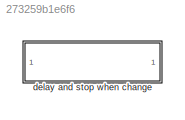
MODEL slx_273259b1e6f6
KIND library
CONFIG AbsTol = auto
CONFIG EnableMultiTasking = off
CONFIG FixedStep = auto
CONFIG MaxStep = auto
CONFIG MinStep = auto
CONFIG RelTol = 1e-3
CONFIG SampleTimeConstraint = Unconstrained
CONFIG SolverName = VariableStepAuto
CONFIG StartTime = 0.0
CONFIG StopTime = 10.0
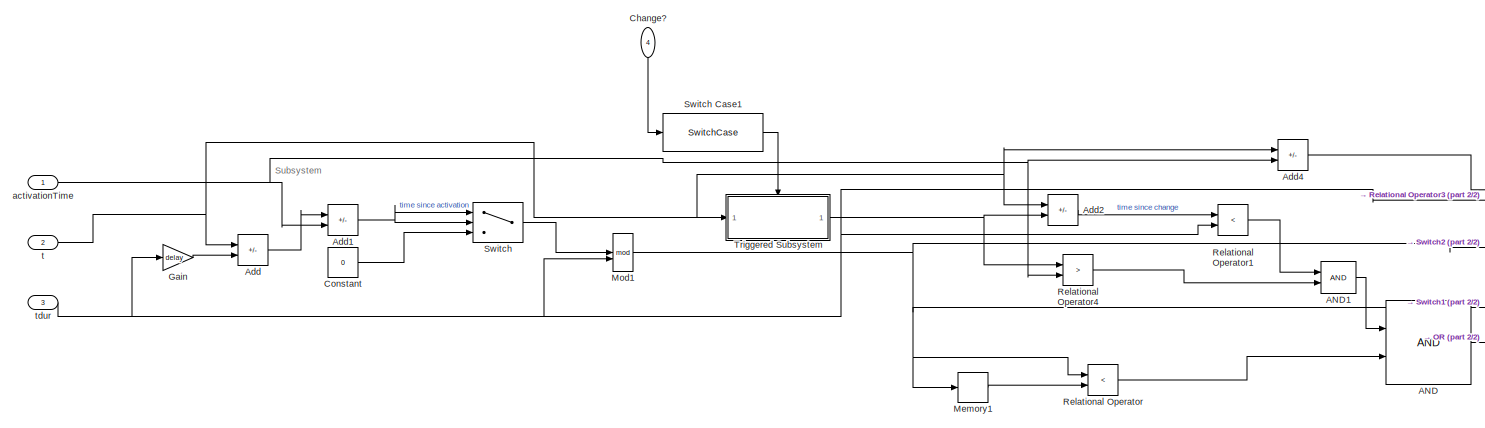
[diagram: delay and stop when change - part 1/2, most of the canvas]
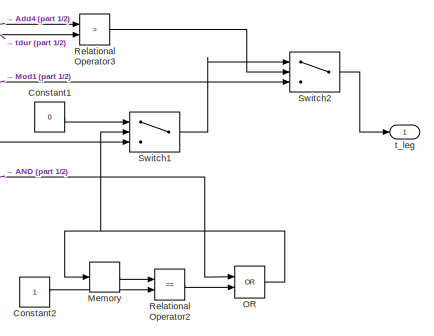
[diagram: delay and stop when change - part 2/2, bottom right region]
BLOCK [SubSystem] delay and stop when change
BLOCK [Logic] delay and stop when change/AND
  AllPortsSameDT = off
  IconShape = distinctive
  OutDataTypeStr = boolean
BLOCK [Logic] delay and stop when change/AND1
  AllPortsSameDT = off
  IconShape = distinctive
  OutDataTypeStr = boolean
BLOCK [Sum] delay and stop when change/Add
  IconShape = rectangular
  Inputs = +-
BLOCK [Sum] delay and stop when change/Add1
  IconShape = rectangular
  Inputs = +-
BLOCK [Sum] delay and stop when change/Add2
  IconShape = rectangular
  Inputs = +-
BLOCK [Sum] delay and stop when change/Add4
  IconShape = rectangular
  Inputs = +-
BLOCK [Inport] delay and stop when change/Change?
  NameLocation = left
  Port = 4
BLOCK [Constant] delay and stop when change/Constant
  Value = 0
BLOCK [Constant] delay and stop when change/Constant1
  Value = 0
BLOCK [Constant] delay and stop when change/Constant2
BLOCK [Gain] delay and stop when change/Gain
  Gain = delay
BLOCK [Memory] delay and stop when change/Memory
BLOCK [Memory] delay and stop when change/Memory1
BLOCK [Math] delay and stop when change/Mod1
  Operator = mod
BLOCK [Logic] delay and stop when change/OR
  AllPortsSameDT = off
  IconShape = distinctive
  Operator = OR
  OutDataTypeStr = boolean
BLOCK [RelationalOperator] delay and stop when change/Relational Operator
  InputSameDT = off
  Operator = <
  OutDataTypeStr = boolean
  RndMeth = Simplest
BLOCK [RelationalOperator] delay and stop when change/Relational Operator1
  InputSameDT = off
  Operator = <
  OutDataTypeStr = boolean
  RndMeth = Simplest
BLOCK [RelationalOperator] delay and stop when change/Relational Operator2
  InputSameDT = off
  Operator = ==
  OutDataTypeStr = boolean
  RndMeth = Simplest
BLOCK [RelationalOperator] delay and stop when change/Relational Operator3
  InputSameDT = off
  Operator = >
  OutDataTypeStr = boolean
  RndMeth = Simplest
BLOCK [RelationalOperator] delay and stop when change/Relational Operator4
  InputSameDT = off
  Operator = >
  OutDataTypeStr = boolean
  RndMeth = Simplest
BLOCK [Switch] delay and stop when change/Switch
  Criteria = u2 > Threshold
  InputSameDT = off
  SaturateOnIntegerOverflow = off
BLOCK [SwitchCase] delay and stop when change/Switch Case1
  ShowDefaultCase = off
BLOCK [Switch] delay and stop when change/Switch1
  Criteria = u2 > Threshold
  InputSameDT = off
  SaturateOnIntegerOverflow = off
BLOCK [Switch] delay and stop when change/Switch2
  Criteria = u2 > Threshold
  InputSameDT = off
  SaturateOnIntegerOverflow = off
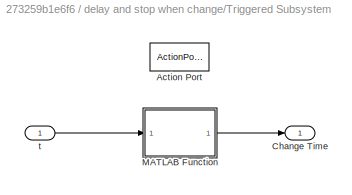
BLOCK [SubSystem] delay and stop when change/Triggered Subsystem
  TreatAsAtomicUnit = on
BLOCK [ActionPort] delay and stop when change/Triggered Subsystem/Action Port
  InitializeStates = reset
BLOCK [Outport] delay and stop when change/Triggered Subsystem/Change Time
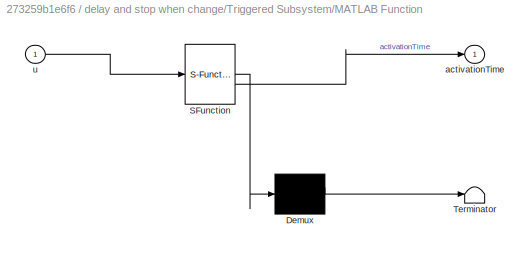
BLOCK [SubSystem] delay and stop when change/Triggered Subsystem/MATLAB Function
  ErrorFcn = Stateflow.Translate.translate
  PermitHierarchicalResolution = ExplicitOnly
  SFBlockType = MATLAB Function
  TreatAsAtomicUnit = on
BLOCK [Demux] delay and stop when change/Triggered Subsystem/MATLAB Function/ Demux 
  Outputs = 1
BLOCK [S-Function] delay and stop when change/Triggered Subsystem/MATLAB Function/ SFunction 
  EnableBusSupport = off
  FunctionName = sf_sfun
  PortCounts = [1 2]
  SFcnIsStateOwnerBlock = off
  SFunctionDeploymentMode = off
  Tag = Stateflow S-Function 1
BLOCK [Terminator] delay and stop when change/Triggered Subsystem/MATLAB Function/ Terminator 
BLOCK [Outport] delay and stop when change/Triggered Subsystem/MATLAB Function/activationTime
BLOCK [Inport] delay and stop when change/Triggered Subsystem/MATLAB Function/u
BLOCK [Inport] delay and stop when change/Triggered Subsystem/t
BLOCK [Inport] delay and stop when change/activationTime
BLOCK [Inport] delay and stop when change/t
  Port = 2
BLOCK [Outport] delay and stop when change/t_leg
BLOCK [Inport] delay and stop when change/tdur
  Port = 3
ANNOTATION delay and stop when change: Subsystem
LINE delay and stop when change/AND1:1 -> delay and stop when change/AND:1
LINE delay and stop when change/AND:1 -> delay and stop when change/OR:1
NET delay and stop when change/Add1:1 -> delay and stop when change/Switch:1, delay and stop when change/Switch:2
LINE delay and stop when change/Add2:1 -> delay and stop when change/Relational Operator1:1
LINE delay and stop when change/Add4:1 -> delay and stop when change/Relational Operator3:1
LINE delay and stop when change/Add:1 -> delay and stop when change/Add1:1
LINE delay and stop when change/Change?:1 -> delay and stop when change/Switch Case1:1
LINE delay and stop when change/Constant1:1 -> delay and stop when change/Switch1:1
LINE delay and stop when change/Constant2:1 -> delay and stop when change/Relational Operator2:2
LINE delay and stop when change/Constant:1 -> delay and stop when change/Switch:3
LINE delay and stop when change/Gain:1 -> delay and stop when change/Add:2
LINE delay and stop when change/Memory1:1 -> delay and stop when change/Relational Operator:2
LINE delay and stop when change/Memory:1 -> delay and stop when change/Relational Operator2:1
NET delay and stop when change/Mod1:1 -> delay and stop when change/Memory1:1, delay and stop when change/Relational Operator:1, delay and stop when change/Switch1:3, delay and stop when change/Switch2:3
NET delay and stop when change/OR:1 -> delay and stop when change/Memory:1, delay and stop when change/Switch1:2
LINE delay and stop when change/Relational Operator1:1 -> delay and stop when change/AND1:1
LINE delay and stop when change/Relational Operator2:1 -> delay and stop when change/OR:2
LINE delay and stop when change/Relational Operator3:1 -> delay and stop when change/Switch2:2
LINE delay and stop when change/Relational Operator4:1 -> delay and stop when change/AND1:2
LINE delay and stop when change/Relational Operator:1 -> delay and stop when change/AND:2
LINE delay and stop when change/Switch Case1:1 -> delay and stop when change/Triggered Subsystem:ifaction
LINE delay and stop when change/Switch1:1 -> delay and stop when change/Switch2:1
LINE delay and stop when change/Switch2:1 -> delay and stop when change/t_leg:1
LINE delay and stop when change/Switch:1 -> delay and stop when change/Mod1:1
LINE delay and stop when change/Triggered Subsystem/MATLAB Function:1 -> delay and stop when change/Triggered Subsystem/Change Time:1
LINE delay and stop when change/Triggered Subsystem/t:1 -> delay and stop when change/Triggered Subsystem/MATLAB Function:1
NET delay and stop when change/Triggered Subsystem:1 -> delay and stop when change/Add2:2, delay and stop when change/Relational Operator4:1
NET delay and stop when change/activationTime:1 -> delay and stop when change/Add1:2, delay and stop when change/Add4:2, delay and stop when change/Relational Operator4:2
NET delay and stop when change/t:1 -> delay and stop when change/Add2:1, delay and stop when change/Add4:1, delay and stop when change/Add:1, delay and stop when change/Triggered Subsystem:1
NET delay and stop when change/tdur:1 -> delay and stop when change/Gain:1, delay and stop when change/Mod1:2, delay and stop when change/Relational Operator1:2, delay and stop when change/Relational Operator3:2
note: NET lines group one-source signal fan-out (src -> all destinations, sorted); 1:1 wires keep LINE
CHART Test Assessment Block states=2 transitions=6
  STATE_LABEL 'Run\n\n'
  STATE_LABEL 'step_1_1'
  STATE_LABEL '[t < 5\n]'
  STATE_LABEL '[~in(Run.step_1_1)]'
  STATE_LABEL 'step_1_1'
CHART delay and stop when change/Triggered
Subsystem/MATLAB Function states=1 transitions=1
  STATE_LABEL 'eML_blk_kernel()'
  STATE_LABEL 'SCRIPT:\nfunction activationTime = getActivationTime(u)\n    persistent t_start\n    if isempty(t_start)\n        t_start = u;\n    end\n    activationTime = t_start;\nend'
CHART  states=0 transitions=0
